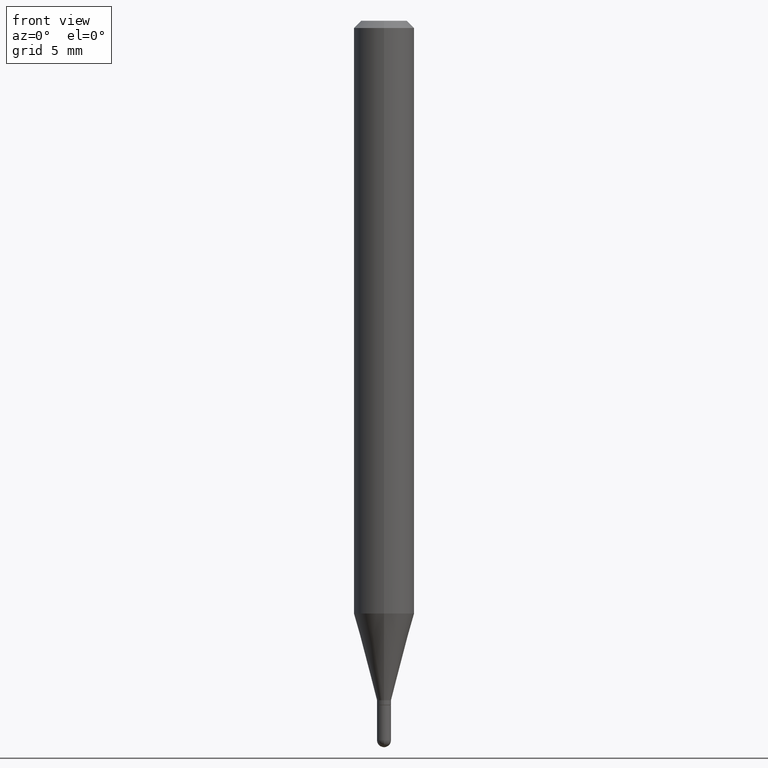
[diagram: clean part render]
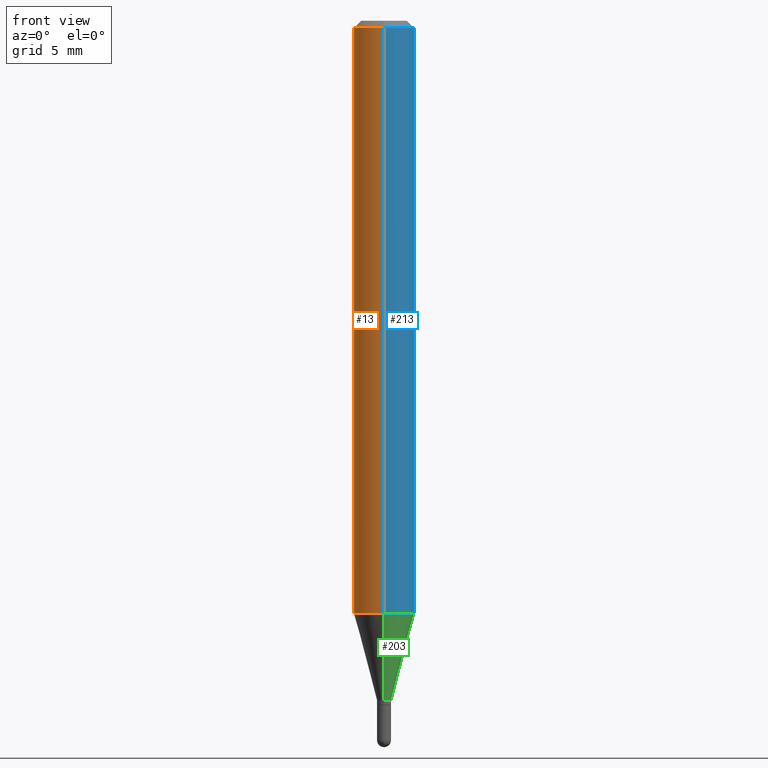
[diagram: same view with three faces highlighted in distinct colors, each labeled with its STEP entity id]
A machine part, front view with three faces highlighted in distinct colors.
Their STEP definitions:

[orange] entity #13 — the highlighted cylindrical surface (edge-blend (fillet) strip) has radius 1.5875 mm, axis along (-0, 0, 1).
#13 = ADVANCED_FACE ( 'NONE', ( #350 ), #341, .T. ) ;
#25 = DIRECTION ( 'NONE',  ( -6.982962677686265922E-15, -1.000000000000000000, 3.483106191921935554E-15 ) ) ;
#34 = CARTESIAN_POINT ( 'NONE',  ( 4.440892098500927901E-16, 0.06249999999999995837, -0.01499999999999997863 ) ) ;
#68 = CARTESIAN_POINT ( 'NONE',  ( -4.364351673553916201E-16, -0.06250000000000000000, 2.182187995279172778E-16 ) ) ;
#92 = EDGE_LOOP ( 'NONE', ( #155, #180, #250, #411 ) ) ;
#97 = CARTESIAN_POINT ( 'NONE',  ( 4.440892098500922971E-16, 0.06249999999999571176, -1.223861561236694540 ) ) ;
#104 = EDGE_CURVE ( 'NONE', #365, #281, #284, .T. ) ;
#127 = VECTOR ( 'NONE', #417, 39.37007874015748143 ) ;
#145 = CARTESIAN_POINT ( 'NONE',  ( 3.668182832709536593E-31, -5.237251188669931123E-17, -0.01499999999999976179 ) ) ;
#147 = EDGE_CURVE ( 'NONE', #413, #221, #369, .T. ) ;
#150 = DIRECTION ( 'NONE',  ( -2.445455221806396533E-29, 3.491500792446676445E-15, 1.000000000000000000 ) ) ;
#155 = ORIENTED_EDGE ( 'NONE', *, *, #357, .F. ) ;
#156 = CARTESIAN_POINT ( 'NONE',  ( 2.992898645694403006E-29, -4.273113610902943475E-15, -1.223861561236694095 ) ) ;
#165 = EDGE_CURVE ( 'NONE', #221, #281, #421, .T. ) ;
#180 = ORIENTED_EDGE ( 'NONE', *, *, #147, .T. ) ;
#209 = CARTESIAN_POINT ( 'NONE',  ( -4.364351673553617913E-16, -0.06250000000000427436, -1.223861561236693873 ) ) ;
#217 = DIRECTION ( 'NONE',  ( -6.982962677686265922E-15, -1.000000000000000000, 4.370956789862821150E-15 ) ) ;
#221 = VERTEX_POINT ( 'NONE', #209 ) ;
#223 = LINE ( 'NONE', #277, #274 ) ;
#250 = ORIENTED_EDGE ( 'NONE', *, *, #165, .T. ) ;
#257 = AXIS2_PLACEMENT_3D ( 'NONE', #145, #150, #25 ) ;
#258 = DIRECTION ( 'NONE',  ( -2.445455221806396533E-29, 3.491500792446676840E-15, 1.000000000000000000 ) ) ;
#273 = AXIS2_PLACEMENT_3D ( 'NONE', #496, #456, #346 ) ;
#274 = VECTOR ( 'NONE', #258, 39.37007874015748143 ) ;
#277 = CARTESIAN_POINT ( 'NONE',  ( 4.440892098500625669E-16, 0.06250000000000000000, -2.182187995279172778E-16 ) ) ;
#281 = VERTEX_POINT ( 'NONE', #447 ) ;
#284 = CIRCLE ( 'NONE', #257, 0.06250000000000000000 ) ;
#341 = CYLINDRICAL_SURFACE ( 'NONE', #273, 0.06250000000000000000 ) ;
#345 = AXIS2_PLACEMENT_3D ( 'NONE', #156, #427, #217 ) ;
#346 = DIRECTION ( 'NONE',  ( -6.982962677686265922E-15, -1.000000000000000000, 3.491500792446676445E-15 ) ) ;
#350 = FACE_OUTER_BOUND ( 'NONE', #92, .T. ) ;
#357 = EDGE_CURVE ( 'NONE', #413, #365, #223, .T. ) ;
#365 = VERTEX_POINT ( 'NONE', #34 ) ;
#369 = CIRCLE ( 'NONE', #345, 0.06250000000000000000 ) ;
#411 = ORIENTED_EDGE ( 'NONE', *, *, #104, .F. ) ;
#413 = VERTEX_POINT ( 'NONE', #97 ) ;
#417 = DIRECTION ( 'NONE',  ( -2.445455221806396533E-29, 3.491500792446676840E-15, 1.000000000000000000 ) ) ;
#421 = LINE ( 'NONE', #68, #127 ) ;
#427 = DIRECTION ( 'NONE',  ( -2.445455221806396533E-29, 3.491500792446676445E-15, 1.000000000000000000 ) ) ;
#447 = CARTESIAN_POINT ( 'NONE',  ( -4.364351673553912750E-16, -0.06250000000000005551, -0.01499999999999954321 ) ) ;
#456 = DIRECTION ( 'NONE',  ( -2.445455221806396533E-29, 3.491500792446676445E-15, 1.000000000000000000 ) ) ;
#496 = CARTESIAN_POINT ( 'NONE',  ( 0.000000000000000000, 0.000000000000000000, 0.000000000000000000 ) ) ;

[blue] entity #213 — the highlighted cylindrical surface (edge-blend (fillet) strip) has radius 1.5875 mm, axis along (-0, 0, 1).
#34 = CARTESIAN_POINT ( 'NONE',  ( 4.440892098500927901E-16, 0.06249999999999995837, -0.01499999999999997863 ) ) ;
#63 = FACE_OUTER_BOUND ( 'NONE', #422, .T. ) ;
#68 = CARTESIAN_POINT ( 'NONE',  ( -4.364351673553916201E-16, -0.06250000000000000000, 2.182187995279172778E-16 ) ) ;
#84 = CIRCLE ( 'NONE', #227, 0.06250000000000000000 ) ;
#85 = AXIS2_PLACEMENT_3D ( 'NONE', #328, #485, #102 ) ;
#97 = CARTESIAN_POINT ( 'NONE',  ( 4.440892098500922971E-16, 0.06249999999999571176, -1.223861561236694540 ) ) ;
#102 = DIRECTION ( 'NONE',  ( -6.982962677686265922E-15, -1.000000000000000000, 3.491500792446676445E-15 ) ) ;
#122 = DIRECTION ( 'NONE',  ( -6.982962677686265922E-15, -1.000000000000000000, 4.370956789862821150E-15 ) ) ;
#127 = VECTOR ( 'NONE', #417, 39.37007874015748143 ) ;
#130 = ORIENTED_EDGE ( 'NONE', *, *, #165, .F. ) ;
#165 = EDGE_CURVE ( 'NONE', #221, #281, #421, .T. ) ;
#209 = CARTESIAN_POINT ( 'NONE',  ( -4.364351673553617913E-16, -0.06250000000000427436, -1.223861561236693873 ) ) ;
#213 = ADVANCED_FACE ( 'NONE', ( #63 ), #368, .T. ) ;
#219 = ORIENTED_EDGE ( 'NONE', *, *, #357, .T. ) ;
#221 = VERTEX_POINT ( 'NONE', #209 ) ;
#223 = LINE ( 'NONE', #277, #274 ) ;
#227 = AXIS2_PLACEMENT_3D ( 'NONE', #240, #440, #371 ) ;
#240 = CARTESIAN_POINT ( 'NONE',  ( 3.668182832709536593E-31, -5.237251188669931123E-17, -0.01499999999999976179 ) ) ;
#258 = DIRECTION ( 'NONE',  ( -2.445455221806396533E-29, 3.491500792446676840E-15, 1.000000000000000000 ) ) ;
#259 = EDGE_CURVE ( 'NONE', #281, #365, #84, .T. ) ;
#263 = CARTESIAN_POINT ( 'NONE',  ( 2.992898645694403006E-29, -4.273113610902943475E-15, -1.223861561236694095 ) ) ;
#274 = VECTOR ( 'NONE', #258, 39.37007874015748143 ) ;
#277 = CARTESIAN_POINT ( 'NONE',  ( 4.440892098500625669E-16, 0.06250000000000000000, -2.182187995279172778E-16 ) ) ;
#281 = VERTEX_POINT ( 'NONE', #447 ) ;
#327 = CIRCLE ( 'NONE', #479, 0.06250000000000000000 ) ;
#328 = CARTESIAN_POINT ( 'NONE',  ( 0.000000000000000000, 0.000000000000000000, 0.000000000000000000 ) ) ;
#337 = EDGE_CURVE ( 'NONE', #221, #413, #327, .T. ) ;
#357 = EDGE_CURVE ( 'NONE', #413, #365, #223, .T. ) ;
#365 = VERTEX_POINT ( 'NONE', #34 ) ;
#368 = CYLINDRICAL_SURFACE ( 'NONE', #85, 0.06250000000000000000 ) ;
#371 = DIRECTION ( 'NONE',  ( -6.982962677686265922E-15, -1.000000000000000000, 3.483106191921935554E-15 ) ) ;
#413 = VERTEX_POINT ( 'NONE', #97 ) ;
#417 = DIRECTION ( 'NONE',  ( -2.445455221806396533E-29, 3.491500792446676840E-15, 1.000000000000000000 ) ) ;
#421 = LINE ( 'NONE', #68, #127 ) ;
#422 = EDGE_LOOP ( 'NONE', ( #428, #219, #504, #130 ) ) ;
#428 = ORIENTED_EDGE ( 'NONE', *, *, #337, .T. ) ;
#440 = DIRECTION ( 'NONE',  ( -2.445455221806396533E-29, 3.491500792446676445E-15, 1.000000000000000000 ) ) ;
#447 = CARTESIAN_POINT ( 'NONE',  ( -4.364351673553912750E-16, -0.06250000000000005551, -0.01499999999999954321 ) ) ;
#479 = AXIS2_PLACEMENT_3D ( 'NONE', #263, #502, #122 ) ;
#485 = DIRECTION ( 'NONE',  ( -2.445455221806396533E-29, 3.491500792446676445E-15, 1.000000000000000000 ) ) ;
#502 = DIRECTION ( 'NONE',  ( -2.445455221806396533E-29, 3.491500792446676445E-15, 1.000000000000000000 ) ) ;
#504 = ORIENTED_EDGE ( 'NONE', *, *, #259, .F. ) ;

[green] entity #203 — the highlighted conical surface has half-angle 15 deg.
#16 = CIRCLE ( 'NONE', #384, 0.01449999999999992441 ) ;
#23 = VERTEX_POINT ( 'NONE', #24 ) ;
#24 = CARTESIAN_POINT ( 'NONE',  ( -1.012529588264160223E-16, -0.01450000000000482153, -1.402999999999999803 ) ) ;
#39 = CARTESIAN_POINT ( 'NONE',  ( 3.430973676194374138E-29, -4.898575611802686813E-15, -1.402999999999999803 ) ) ;
#51 = ORIENTED_EDGE ( 'NONE', *, *, #231, .F. ) ;
#72 = EDGE_LOOP ( 'NONE', ( #334, #184, #375, #51 ) ) ;
#97 = CARTESIAN_POINT ( 'NONE',  ( 4.440892098500922971E-16, 0.06249999999999571176, -1.223861561236694540 ) ) ;
#119 = DIRECTION ( 'NONE',  ( -2.445455221806396533E-29, 3.491500792446676445E-15, 1.000000000000000000 ) ) ;
#122 = DIRECTION ( 'NONE',  ( -6.982962677686265922E-15, -1.000000000000000000, 4.370956789862821150E-15 ) ) ;
#142 = DIRECTION ( 'NONE',  ( -2.445455221806396533E-29, 3.491500792446676445E-15, 1.000000000000000000 ) ) ;
#181 = DIRECTION ( 'NONE',  ( -6.982962677686265922E-15, -1.000000000000000000, 0.000000000000000000 ) ) ;
#184 = ORIENTED_EDGE ( 'NONE', *, *, #441, .T. ) ;
#203 = ADVANCED_FACE ( 'NONE', ( #506 ), #394, .T. ) ;
#209 = CARTESIAN_POINT ( 'NONE',  ( -4.364351673553617913E-16, -0.06250000000000427436, -1.223861561236693873 ) ) ;
#211 = CARTESIAN_POINT ( 'NONE',  ( -1.012529588264160223E-16, -0.01450000000000482153, -1.402999999999999803 ) ) ;
#221 = VERTEX_POINT ( 'NONE', #209 ) ;
#231 = EDGE_CURVE ( 'NONE', #23, #221, #292, .T. ) ;
#234 = LINE ( 'NONE', #390, #321 ) ;
#244 = CARTESIAN_POINT ( 'NONE',  ( 2.735589532676705169E-16, 0.01449999999999502555, -1.402999999999999803 ) ) ;
#263 = CARTESIAN_POINT ( 'NONE',  ( 2.992898645694403006E-29, -4.273113610902943475E-15, -1.223861561236694095 ) ) ;
#292 = LINE ( 'NONE', #211, #490 ) ;
#297 = DIRECTION ( 'NONE',  ( -1.807323732225331717E-15, -0.2588190451025184080, 0.9659258262890689783 ) ) ;
#321 = VECTOR ( 'NONE', #353, 39.37007874015748854 ) ;
#327 = CIRCLE ( 'NONE', #479, 0.06250000000000000000 ) ;
#329 = VERTEX_POINT ( 'NONE', #244 ) ;
#334 = ORIENTED_EDGE ( 'NONE', *, *, #446, .T. ) ;
#337 = EDGE_CURVE ( 'NONE', #221, #413, #327, .T. ) ;
#353 = DIRECTION ( 'NONE',  ( 1.839019923739601893E-15, 0.2588190451025252359, 0.9659258262890670910 ) ) ;
#375 = ORIENTED_EDGE ( 'NONE', *, *, #337, .F. ) ;
#384 = AXIS2_PLACEMENT_3D ( 'NONE', #39, #119, #472 ) ;
#390 = CARTESIAN_POINT ( 'NONE',  ( 1.030286966852482683E-16, 0.01449999999999502555, -1.402999999999999803 ) ) ;
#394 = CONICAL_SURFACE ( 'NONE', #429, 0.01449999999999992441, 0.2617993877991505181 ) ;
#413 = VERTEX_POINT ( 'NONE', #97 ) ;
#429 = AXIS2_PLACEMENT_3D ( 'NONE', #493, #142, #181 ) ;
#441 = EDGE_CURVE ( 'NONE', #329, #413, #234, .T. ) ;
#446 = EDGE_CURVE ( 'NONE', #23, #329, #16, .T. ) ;
#472 = DIRECTION ( 'NONE',  ( -6.982962677686265922E-15, -1.000000000000000000, 0.000000000000000000 ) ) ;
#479 = AXIS2_PLACEMENT_3D ( 'NONE', #263, #502, #122 ) ;
#490 = VECTOR ( 'NONE', #297, 39.37007874015748854 ) ;
#493 = CARTESIAN_POINT ( 'NONE',  ( 3.430973676194374138E-29, -4.898575611802686813E-15, -1.402999999999999803 ) ) ;
#502 = DIRECTION ( 'NONE',  ( -2.445455221806396533E-29, 3.491500792446676445E-15, 1.000000000000000000 ) ) ;
#506 = FACE_OUTER_BOUND ( 'NONE', #72, .T. ) ;